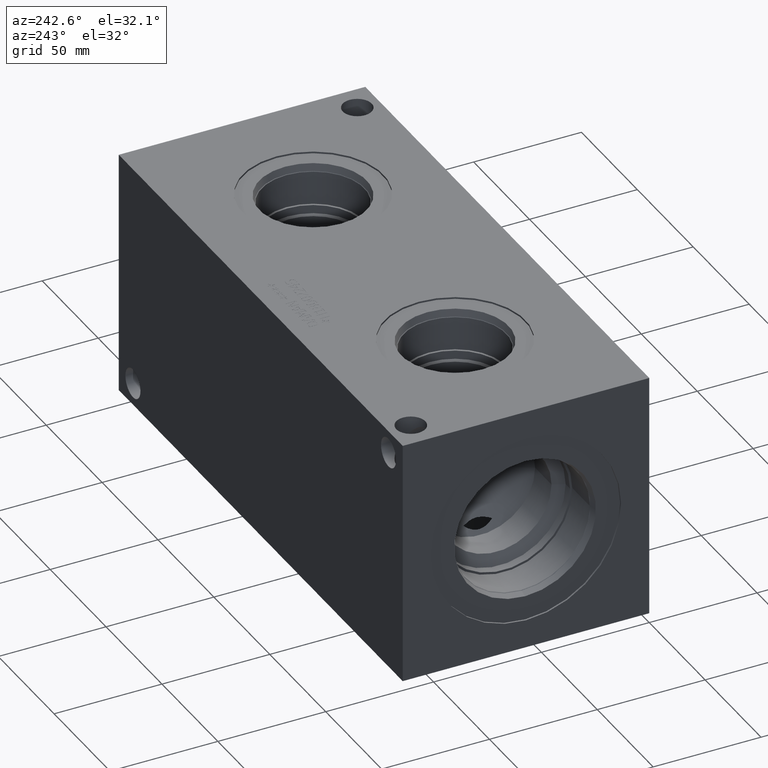
[diagram: clean part render]
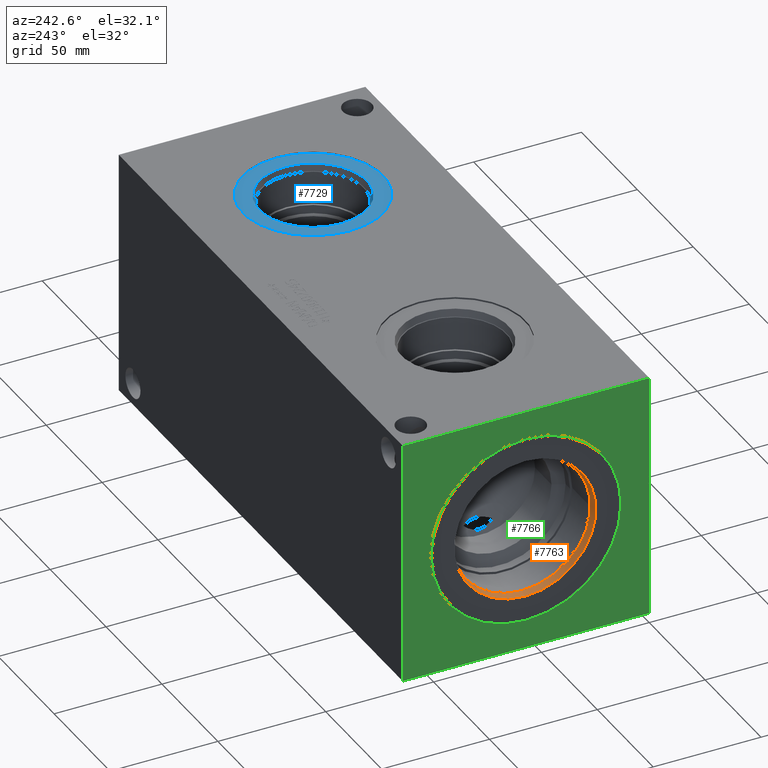
[diagram: same view with three faces highlighted in distinct colors, each labeled with its STEP entity id]
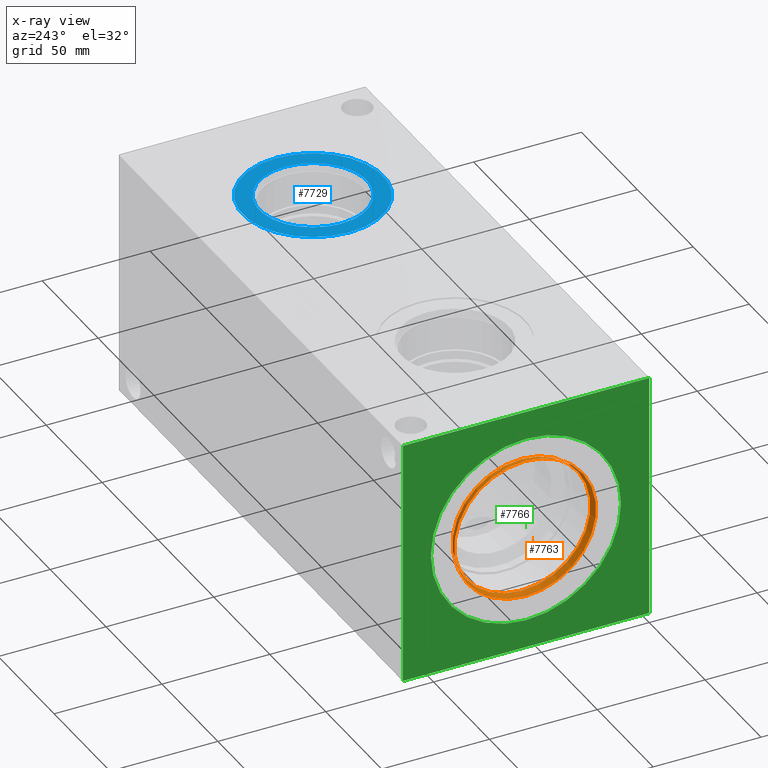
[diagram: x-ray of the same camera — body ghosted, the three highlighted faces saturated]
A machine part, auxiliary view with three faces highlighted in distinct colors.
The next image is the same camera in x-ray (body ghosted, the three faces saturated) — at least one of them is partly hidden behind the body in this view.
Their STEP definitions:

[orange] entity #7763 — the highlighted conical surface has half-angle 15 deg.
#44=CONICAL_SURFACE('',#8209,32.41675,0.261799389532317);
#204=CIRCLE('',#8207,32.8549);
#205=CIRCLE('',#8208,32.8549);
#206=CIRCLE('',#8210,31.9786);
#207=CIRCLE('',#8211,31.9786);
#932=FACE_OUTER_BOUND('',#1371,.T.);
#1371=EDGE_LOOP('',(#6778,#6779,#6780,#6781,#6782,#6783));
#2128=LINE('',#13283,#2877);
#2877=VECTOR('',#9810,32.41675);
#3600=VERTEX_POINT('',#13277);
#3601=VERTEX_POINT('',#13278);
#3602=VERTEX_POINT('',#13282);
#3603=VERTEX_POINT('',#13284);
#4668=EDGE_CURVE('',#3600,#3601,#204,.T.);
#4669=EDGE_CURVE('',#3601,#3600,#205,.T.);
#4670=EDGE_CURVE('',#3601,#3602,#2128,.T.);
#4671=EDGE_CURVE('',#3602,#3603,#206,.T.);
#4672=EDGE_CURVE('',#3603,#3602,#207,.T.);
#6778=ORIENTED_EDGE('',*,*,#4668,.F.);
#6779=ORIENTED_EDGE('',*,*,#4669,.F.);
#6780=ORIENTED_EDGE('',*,*,#4670,.T.);
#6781=ORIENTED_EDGE('',*,*,#4671,.T.);
#6782=ORIENTED_EDGE('',*,*,#4672,.T.);
#6783=ORIENTED_EDGE('',*,*,#4670,.F.);
#7763=ADVANCED_FACE('',(#932),#44,.F.);
#8207=AXIS2_PLACEMENT_3D('',#13279,#9804,#9805);
#8208=AXIS2_PLACEMENT_3D('',#13280,#9806,#9807);
#8209=AXIS2_PLACEMENT_3D('',#13281,#9808,#9809);
#8210=AXIS2_PLACEMENT_3D('',#13285,#9811,#9812);
#8211=AXIS2_PLACEMENT_3D('',#13286,#9813,#9814);
#9804=DIRECTION('center_axis',(1.,0.,0.));
#9805=DIRECTION('ref_axis',(0.,0.,-1.));
#9806=DIRECTION('center_axis',(1.,0.,0.));
#9807=DIRECTION('ref_axis',(0.,0.,-1.));
#9808=DIRECTION('center_axis',(-1.,0.,0.));
#9809=DIRECTION('ref_axis',(0.,0.,1.));
#9810=DIRECTION('',(0.965925825840491,-3.16961917193371E-17,0.258819046776632));
#9811=DIRECTION('center_axis',(1.,0.,0.));
#9812=DIRECTION('ref_axis',(0.,0.,-1.));
#9813=DIRECTION('center_axis',(1.,0.,0.));
#9814=DIRECTION('ref_axis',(0.,0.,-1.));
#13277=CARTESIAN_POINT('',(0.7874,57.15,90.0049));
#13278=CARTESIAN_POINT('',(0.787400000000001,57.15,24.2951));
#13279=CARTESIAN_POINT('Origin',(0.7874,57.15,57.15));
#13280=CARTESIAN_POINT('Origin',(0.7874,57.15,57.15));
#13281=CARTESIAN_POINT('Origin',(2.42259805,57.15,57.15));
#13282=CARTESIAN_POINT('',(4.0577961,57.15,25.1714));
#13283=CARTESIAN_POINT('',(2.42259805,57.15,24.73325));
#13284=CARTESIAN_POINT('',(4.0577961,57.15,89.1286));
#13285=CARTESIAN_POINT('Origin',(4.0577961,57.15,57.15));
#13286=CARTESIAN_POINT('Origin',(4.0577961,57.15,57.15));

[blue] entity #7729 — the highlighted planar face has unit normal (0, 0, -1).
#146=CIRCLE('',#8115,32.5628);
#147=CIRCLE('',#8116,32.5628);
#148=CIRCLE('',#8118,24.9047);
#149=CIRCLE('',#8119,24.9047);
#246=FACE_BOUND('',#1327,.T.);
#898=FACE_OUTER_BOUND('',#1326,.T.);
#1326=EDGE_LOOP('',(#6595,#6596));
#1327=EDGE_LOOP('',(#6597,#6598));
#3536=VERTEX_POINT('',#13061);
#3537=VERTEX_POINT('',#13063);
#3538=VERTEX_POINT('',#13067);
#3539=VERTEX_POINT('',#13068);
#4579=EDGE_CURVE('',#3536,#3537,#146,.T.);
#4580=EDGE_CURVE('',#3537,#3536,#147,.T.);
#4581=EDGE_CURVE('',#3538,#3539,#148,.T.);
#4582=EDGE_CURVE('',#3539,#3538,#149,.T.);
#6595=ORIENTED_EDGE('',*,*,#4580,.F.);
#6596=ORIENTED_EDGE('',*,*,#4579,.F.);
#6597=ORIENTED_EDGE('',*,*,#4581,.T.);
#6598=ORIENTED_EDGE('',*,*,#4582,.T.);
#7062=PLANE('',#8117);
#7729=ADVANCED_FACE('',(#898,#246),#7062,.F.);
#8115=AXIS2_PLACEMENT_3D('',#13064,#9593,#9594);
#8116=AXIS2_PLACEMENT_3D('',#13065,#9595,#9596);
#8117=AXIS2_PLACEMENT_3D('',#13066,#9597,#9598);
#8118=AXIS2_PLACEMENT_3D('',#13069,#9599,#9600);
#8119=AXIS2_PLACEMENT_3D('',#13070,#9601,#9602);
#9593=DIRECTION('center_axis',(0.,0.,-1.));
#9594=DIRECTION('ref_axis',(1.,0.,0.));
#9595=DIRECTION('center_axis',(0.,0.,-1.));
#9596=DIRECTION('ref_axis',(1.,0.,0.));
#9597=DIRECTION('center_axis',(0.,0.,-1.));
#9598=DIRECTION('ref_axis',(-1.,0.,0.));
#9599=DIRECTION('center_axis',(0.,0.,-1.));
#9600=DIRECTION('ref_axis',(1.,0.,0.));
#9601=DIRECTION('center_axis',(0.,0.,-1.));
#9602=DIRECTION('ref_axis',(1.,0.,0.));
#13061=CARTESIAN_POINT('',(157.9372,57.15,113.5126));
#13063=CARTESIAN_POINT('',(223.0628,57.15,113.5126));
#13064=CARTESIAN_POINT('Origin',(190.5,57.15,113.5126));
#13065=CARTESIAN_POINT('Origin',(190.5,57.15,113.5126));
#13066=CARTESIAN_POINT('Origin',(215.4047,57.15,113.5126));
#13067=CARTESIAN_POINT('',(215.4047,57.15,113.5126));
#13068=CARTESIAN_POINT('',(165.5953,57.15,113.5126));
#13069=CARTESIAN_POINT('Origin',(190.5,57.15,113.5126));
#13070=CARTESIAN_POINT('Origin',(190.5,57.15,113.5126));

[green] entity #7766 — the highlighted planar face has unit normal (-1, 0, 0).
#200=CIRCLE('',#8202,44.069);
#201=CIRCLE('',#8203,44.069);
#257=FACE_BOUND('',#1375,.T.);
#935=FACE_OUTER_BOUND('',#1374,.T.);
#1374=EDGE_LOOP('',(#6796,#6797,#6798,#6799));
#1375=EDGE_LOOP('',(#6800,#6801));
#1691=LINE('',#11854,#2440);
#2131=LINE('',#13298,#2880);
#2132=LINE('',#13299,#2881);
#2133=LINE('',#13300,#2882);
#2440=VECTOR('',#8691,10.);
#2880=VECTOR('',#9827,10.);
#2881=VECTOR('',#9828,10.);
#2882=VECTOR('',#9829,10.);
#3196=VERTEX_POINT('',#11847);
#3199=VERTEX_POINT('',#11852);
#3596=VERTEX_POINT('',#13267);
#3597=VERTEX_POINT('',#13268);
#3606=VERTEX_POINT('',#13296);
#3607=VERTEX_POINT('',#13297);
#4075=EDGE_CURVE('',#3199,#3196,#1691,.T.);
#4663=EDGE_CURVE('',#3596,#3597,#200,.T.);
#4664=EDGE_CURVE('',#3597,#3596,#201,.T.);
#4677=EDGE_CURVE('',#3606,#3607,#2131,.T.);
#4678=EDGE_CURVE('',#3607,#3196,#2132,.T.);
#4679=EDGE_CURVE('',#3606,#3199,#2133,.T.);
#6796=ORIENTED_EDGE('',*,*,#4677,.T.);
#6797=ORIENTED_EDGE('',*,*,#4678,.T.);
#6798=ORIENTED_EDGE('',*,*,#4075,.F.);
#6799=ORIENTED_EDGE('',*,*,#4679,.F.);
#6800=ORIENTED_EDGE('',*,*,#4663,.T.);
#6801=ORIENTED_EDGE('',*,*,#4664,.T.);
#7069=PLANE('',#8216);
#7766=ADVANCED_FACE('',(#935,#257),#7069,.T.);
#8202=AXIS2_PLACEMENT_3D('',#13269,#9793,#9794);
#8203=AXIS2_PLACEMENT_3D('',#13270,#9795,#9796);
#8216=AXIS2_PLACEMENT_3D('',#13295,#9825,#9826);
#8691=DIRECTION('',(0.,-1.,0.));
#9793=DIRECTION('center_axis',(1.,0.,0.));
#9794=DIRECTION('ref_axis',(0.,0.,1.));
#9795=DIRECTION('center_axis',(1.,0.,0.));
#9796=DIRECTION('ref_axis',(0.,0.,1.));
#9825=DIRECTION('center_axis',(-1.,0.,0.));
#9826=DIRECTION('ref_axis',(0.,-1.,0.));
#9827=DIRECTION('',(0.,-1.,0.));
#9828=DIRECTION('',(0.,0.,1.));
#9829=DIRECTION('',(0.,0.,1.));
#11847=CARTESIAN_POINT('',(0.,0.,114.3));
#11852=CARTESIAN_POINT('',(0.,114.3,114.3));
#11854=CARTESIAN_POINT('',(0.,114.3,114.3));
#13267=CARTESIAN_POINT('',(0.,57.15,101.219));
#13268=CARTESIAN_POINT('',(0.,57.15,13.081));
#13269=CARTESIAN_POINT('Origin',(0.,57.15,57.15));
#13270=CARTESIAN_POINT('Origin',(0.,57.15,57.15));
#13295=CARTESIAN_POINT('Origin',(0.,114.3,0.));
#13296=CARTESIAN_POINT('',(0.,114.3,0.));
#13297=CARTESIAN_POINT('',(0.,0.,0.));
#13298=CARTESIAN_POINT('',(0.,114.3,0.));
#13299=CARTESIAN_POINT('',(0.,0.,0.));
#13300=CARTESIAN_POINT('',(0.,114.3,0.));